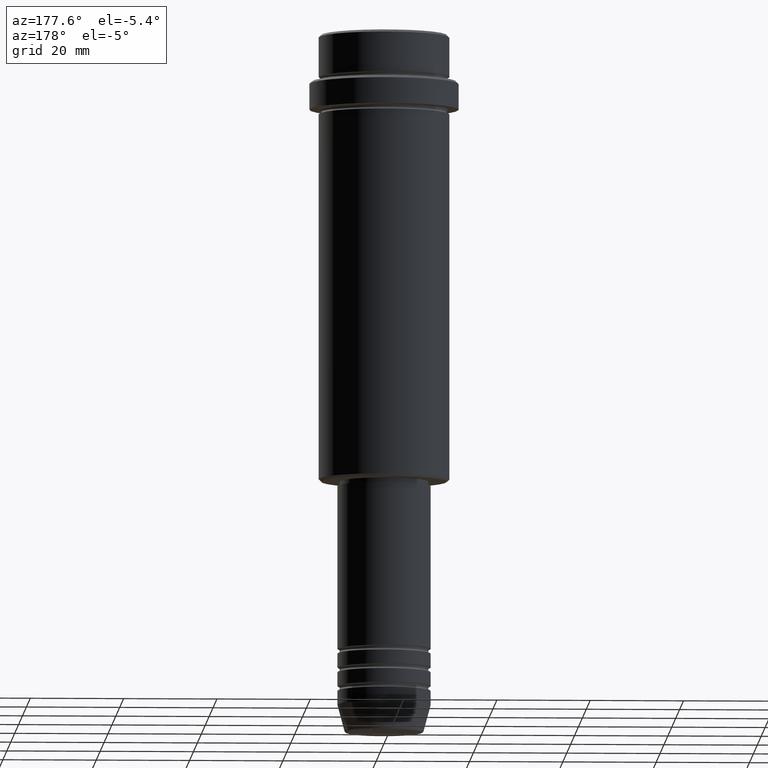
[diagram: clean part render]
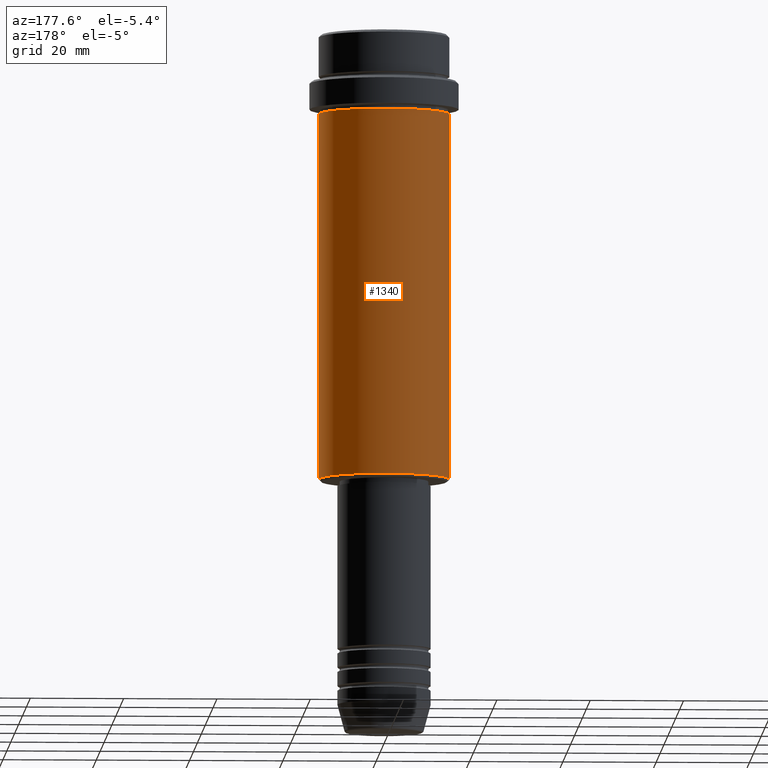
[diagram: same view with one face highlighted and labeled with its STEP entity id]
A machine part, auxiliary view. The second image highlights one B-rep face of the part: STEP entity #1340.
In plain terms, the highlighted cylindrical surface (partial cylindrical patch) has radius 14 mm, axis along (-0, -0, 1).
Its self-contained STEP definition (entity closure, byte-faithful):
#6 = DIRECTION ( 'NONE',  ( -1.000000000000000000, 0.000000000000000000, 0.000000000000000000 ) ) ;
#97 = EDGE_LOOP ( 'NONE', ( #1151, #591, #155, #724 ) ) ;
#106 = FACE_OUTER_BOUND ( 'NONE', #97, .T. ) ;
#122 = AXIS2_PLACEMENT_3D ( 'NONE', #1214, #1320, #878 ) ;
#128 = VERTEX_POINT ( 'NONE', #1362 ) ;
#155 = ORIENTED_EDGE ( 'NONE', *, *, #159, .F. ) ;
#159 = EDGE_CURVE ( 'NONE', #1238, #834, #1003, .T. ) ;
#172 = AXIS2_PLACEMENT_3D ( 'NONE', #1373, #982, #6 ) ;
#223 = VECTOR ( 'NONE', #1111, 1000.000000000000000 ) ;
#313 = CARTESIAN_POINT ( 'NONE',  ( -13.99999999999999112, 1.714505518806293455E-15, -95.50000000000000000 ) ) ;
#365 = EDGE_CURVE ( 'NONE', #899, #834, #799, .T. ) ;
#371 = DIRECTION ( 'NONE',  ( -0.000000000000000000, -0.000000000000000000, 1.000000000000000000 ) ) ;
#433 = DIRECTION ( 'NONE',  ( -0.000000000000000000, -0.000000000000000000, 1.000000000000000000 ) ) ;
#448 = CYLINDRICAL_SURFACE ( 'NONE', #122, 13.99999999999999112 ) ;
#591 = ORIENTED_EDGE ( 'NONE', *, *, #365, .T. ) ;
#619 = CARTESIAN_POINT ( 'NONE',  ( -13.99999999999998401, 1.714505518806293060E-15, -17.00000000000000355 ) ) ;
#635 = CIRCLE ( 'NONE', #172, 13.99999999999999112 ) ;
#724 = ORIENTED_EDGE ( 'NONE', *, *, #1254, .F. ) ;
#799 = LINE ( 'NONE', #805, #223 ) ;
#805 = CARTESIAN_POINT ( 'NONE',  ( -13.99999999999999112, 1.714505518806293455E-15, 0.000000000000000000 ) ) ;
#834 = VERTEX_POINT ( 'NONE', #619 ) ;
#864 = EDGE_CURVE ( 'NONE', #128, #899, #635, .T. ) ;
#878 = DIRECTION ( 'NONE',  ( 1.000000000000000000, 0.000000000000000000, 0.000000000000000000 ) ) ;
#892 = LINE ( 'NONE', #1222, #1337 ) ;
#899 = VERTEX_POINT ( 'NONE', #313 ) ;
#982 = DIRECTION ( 'NONE',  ( -0.000000000000000000, -0.000000000000000000, 1.000000000000000000 ) ) ;
#1003 = CIRCLE ( 'NONE', #1072, 13.99999999999998401 ) ;
#1036 = CARTESIAN_POINT ( 'NONE',  ( 13.99999999999998401, 0.000000000000000000, -17.00000000000000355 ) ) ;
#1043 = DIRECTION ( 'NONE',  ( 1.000000000000000000, 0.000000000000000000, 0.000000000000000000 ) ) ;
#1072 = AXIS2_PLACEMENT_3D ( 'NONE', #1366, #371, #1043 ) ;
#1111 = DIRECTION ( 'NONE',  ( -0.000000000000000000, -0.000000000000000000, 1.000000000000000000 ) ) ;
#1151 = ORIENTED_EDGE ( 'NONE', *, *, #864, .T. ) ;
#1214 = CARTESIAN_POINT ( 'NONE',  ( 0.000000000000000000, 0.000000000000000000, 0.000000000000000000 ) ) ;
#1222 = CARTESIAN_POINT ( 'NONE',  ( 13.99999999999999112, 0.000000000000000000, 0.000000000000000000 ) ) ;
#1238 = VERTEX_POINT ( 'NONE', #1036 ) ;
#1254 = EDGE_CURVE ( 'NONE', #128, #1238, #892, .T. ) ;
#1320 = DIRECTION ( 'NONE',  ( -0.000000000000000000, -0.000000000000000000, 1.000000000000000000 ) ) ;
#1337 = VECTOR ( 'NONE', #433, 1000.000000000000000 ) ;
#1340 = ADVANCED_FACE ( 'NONE', ( #106 ), #448, .T. ) ;
#1362 = CARTESIAN_POINT ( 'NONE',  ( 13.99999999999999112, 0.000000000000000000, -95.50000000000000000 ) ) ;
#1366 = CARTESIAN_POINT ( 'NONE',  ( 0.000000000000000000, 0.000000000000000000, -17.00000000000000355 ) ) ;
#1373 = CARTESIAN_POINT ( 'NONE',  ( 0.000000000000000000, 0.000000000000000000, -95.50000000000000000 ) ) ;